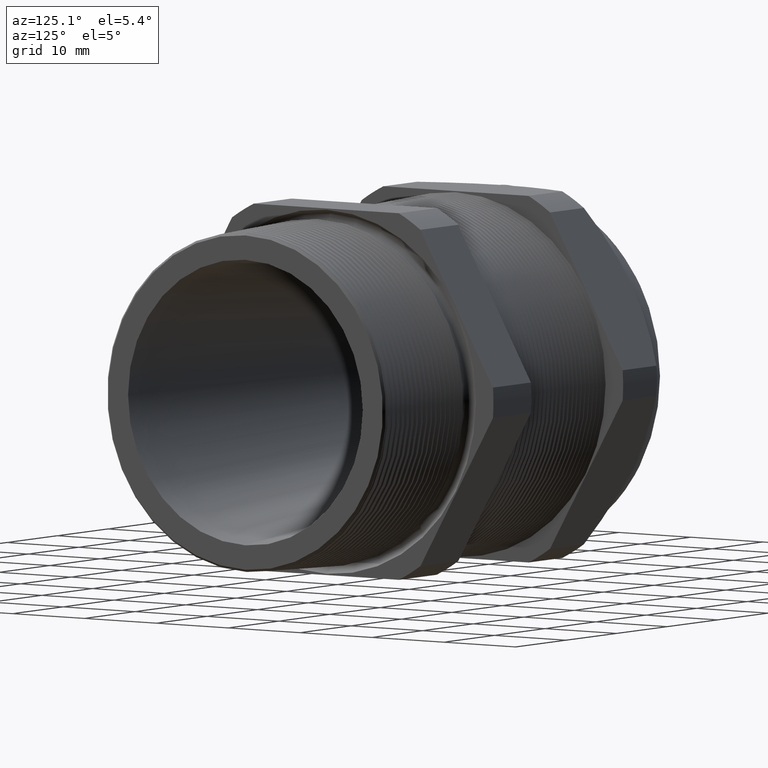
[diagram: clean part render]
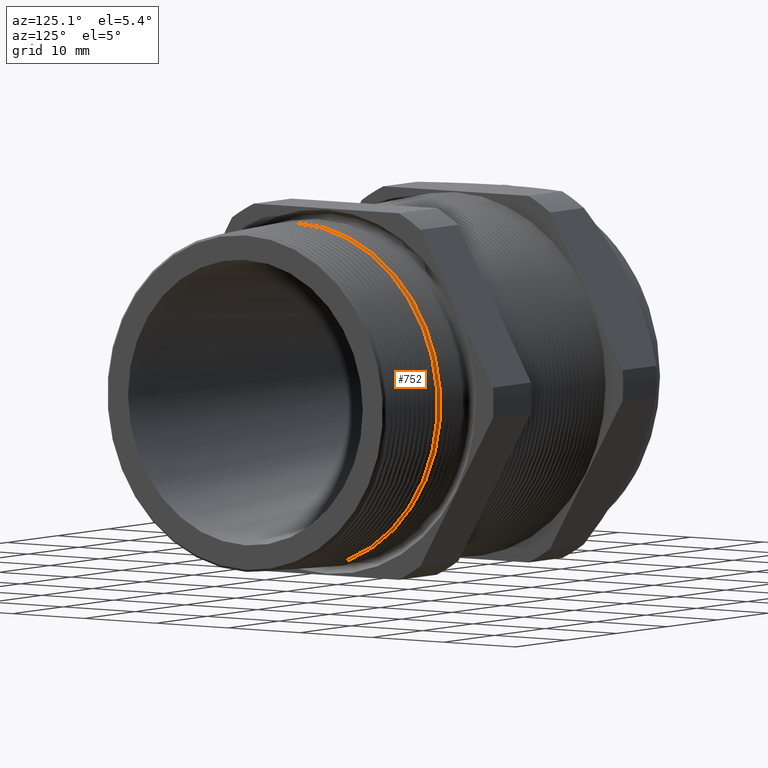
[diagram: same view with one face highlighted and labeled with its STEP entity id]
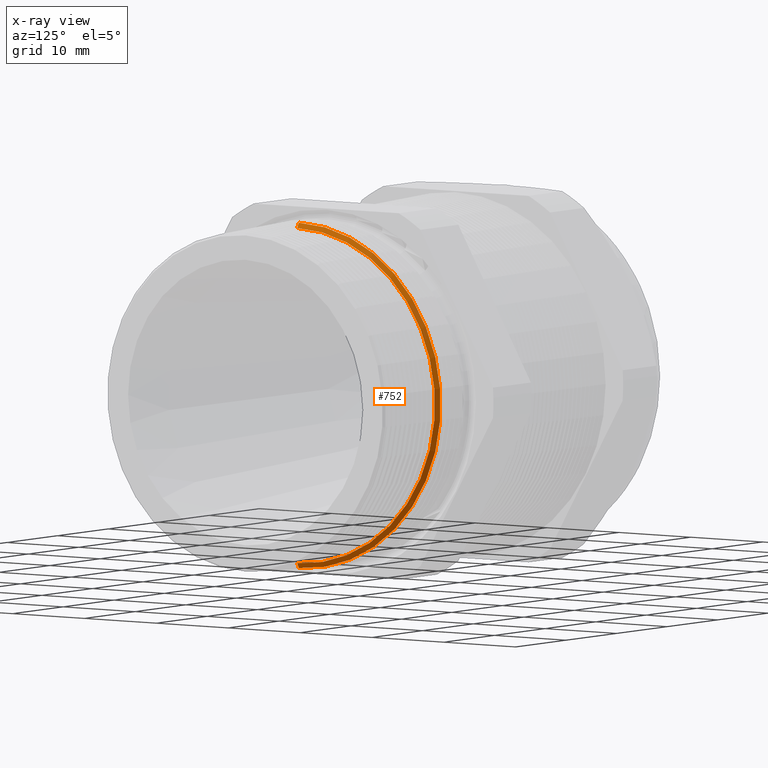
[diagram: x-ray of the same camera — body ghosted, the highlighted face saturated]
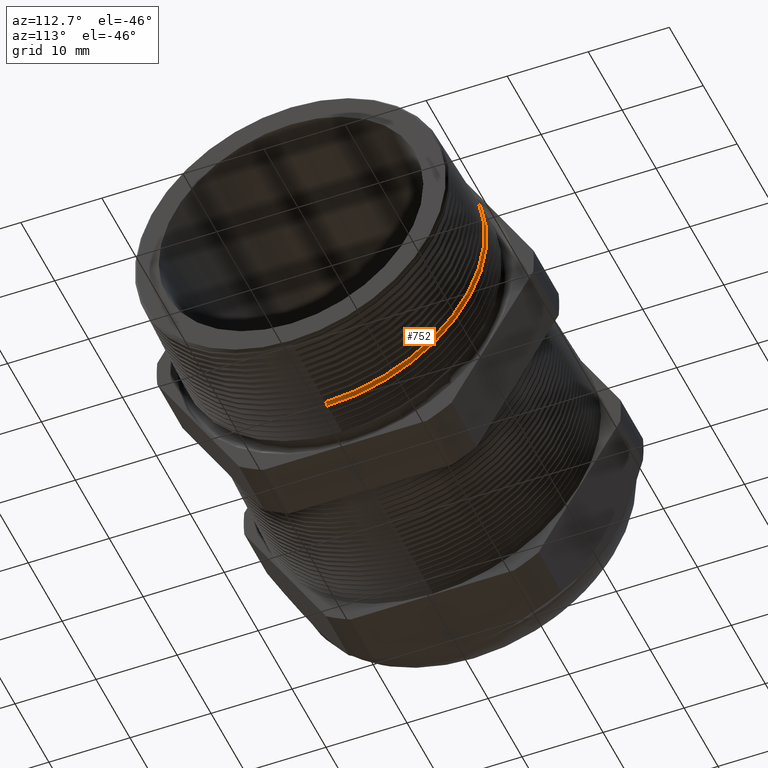
[diagram: same view with one face highlighted and labeled with its STEP entity id]
A machine part, auxiliary view. The second image highlights one B-rep face of the part: STEP entity #752.
The next image is the same camera in x-ray: the body ghosted, the highlighted face saturated — about 1% of this face is hidden behind the body in this view.
A second angle (auxiliary view) of the same face is appended — the face is thin or edge-on in the first view.
In plain terms, the highlighted conical surface has half-angle 62 deg.
Its self-contained STEP definition (entity closure, byte-faithful):
#673 = VERTEX_POINT ( 'NONE', #2847 ) ;
#689 = EDGE_CURVE ( 'NONE', #690, #691, #2879, .T. ) ;
#690 = VERTEX_POINT ( 'NONE', #2875 ) ;
#691 = VERTEX_POINT ( 'NONE', #2874 ) ;
#733 = ORIENTED_EDGE ( 'NONE', *, *, #735, .F. ) ;
#735 = EDGE_CURVE ( 'NONE', #691, #739, #2983, .T. ) ;
#738 = ORIENTED_EDGE ( 'NONE', *, *, #740, .T. ) ;
#739 = VERTEX_POINT ( 'NONE', #2973 ) ;
#740 = EDGE_CURVE ( 'NONE', #673, #739, #2971, .T. ) ;
#752 = ADVANCED_FACE ( 'NONE', ( #3014 ), #3012, .T. ) ;
#753 = EDGE_LOOP ( 'NONE', ( #754, #755, #738, #733 ) ) ;
#754 = ORIENTED_EDGE ( 'NONE', *, *, #689, .F. ) ;
#755 = ORIENTED_EDGE ( 'NONE', *, *, #756, .T. ) ;
#756 = EDGE_CURVE ( 'NONE', #690, #673, #3013, .T. ) ;
#2847 = CARTESIAN_POINT ( 'NONE',  ( -0.09602701323886077300, 9.520259470255743200E-017, -0.7772469227976406300 ) ) ;
#2874 = CARTESIAN_POINT ( 'NONE',  ( -0.08373702801092110200, 0.0000000000000000000, 0.7541328223207396400 ) ) ;
#2875 = CARTESIAN_POINT ( 'NONE',  ( -0.08373702801092110200, 9.376996515691570000E-017, -0.7541328223207396400 ) ) ;
#2876 = DIRECTION ( 'NONE',  ( 0.0000000000000000000, 0.0000000000000000000, -1.000000000000000000 ) ) ;
#2877 = DIRECTION ( 'NONE',  ( 1.000000000000000000, 0.0000000000000000000, 0.0000000000000000000 ) ) ;
#2878 = AXIS2_PLACEMENT_3D ( 'NONE', #2885, #2877, #2876 ) ;
#2879 = CIRCLE ( 'NONE', #2878, 0.7541328223207396400 ) ;
#2885 = CARTESIAN_POINT ( 'NONE',  ( -0.08373702801092110200, 0.0000000000000000000, 0.0000000000000000000 ) ) ;
#2967 = DIRECTION ( 'NONE',  ( 0.0000000000000000000, 0.0000000000000000000, 1.000000000000000000 ) ) ;
#2968 = DIRECTION ( 'NONE',  ( 1.000000000000000000, 0.0000000000000000000, 0.0000000000000000000 ) ) ;
#2969 = CARTESIAN_POINT ( 'NONE',  ( -0.09602701323886077300, 0.0000000000000000000, 0.0000000000000000000 ) ) ;
#2970 = AXIS2_PLACEMENT_3D ( 'NONE', #2969, #2968, #2967 ) ;
#2971 = CIRCLE ( 'NONE', #2970, 0.7772469227976406300 ) ;
#2973 = CARTESIAN_POINT ( 'NONE',  ( -0.09602701323886077300, 0.0000000000000000000, 0.7772469227976406300 ) ) ;
#2980 = DIRECTION ( 'NONE',  ( -0.4694715627858998500, 0.0000000000000000000, 0.8829475928589221000 ) ) ;
#2981 = VECTOR ( 'NONE', #2980, 39.37007874015748100 ) ;
#2982 = CARTESIAN_POINT ( 'NONE',  ( -0.09999999999999996400, 0.0000000000000000000, 0.7847190241457855400 ) ) ;
#2983 = LINE ( 'NONE', #2982, #2981 ) ;
#3005 = DIRECTION ( 'NONE',  ( -0.4694715627858998500, 1.081298943409539200E-016, -0.8829475928589221000 ) ) ;
#3006 = VECTOR ( 'NONE', #3005, 39.37007874015748100 ) ;
#3007 = CARTESIAN_POINT ( 'NONE',  ( -0.09999999999999996400, 9.610036411501709100E-017, -0.7847190241457855400 ) ) ;
#3008 = DIRECTION ( 'NONE',  ( 0.0000000000000000000, 0.0000000000000000000, 1.000000000000000000 ) ) ;
#3009 = DIRECTION ( 'NONE',  ( -1.000000000000000000, 0.0000000000000000000, 0.0000000000000000000 ) ) ;
#3010 = CARTESIAN_POINT ( 'NONE',  ( -0.09999999999999996400, 0.0000000000000000000, 0.0000000000000000000 ) ) ;
#3011 = AXIS2_PLACEMENT_3D ( 'NONE', #3010, #3009, #3008 ) ;
#3012 = CONICAL_SURFACE ( 'NONE', #3011, 0.7847190241457855400, 1.082104136236474100 ) ;
#3013 = LINE ( 'NONE', #3007, #3006 ) ;
#3014 = FACE_OUTER_BOUND ( 'NONE', #753, .T. ) ;